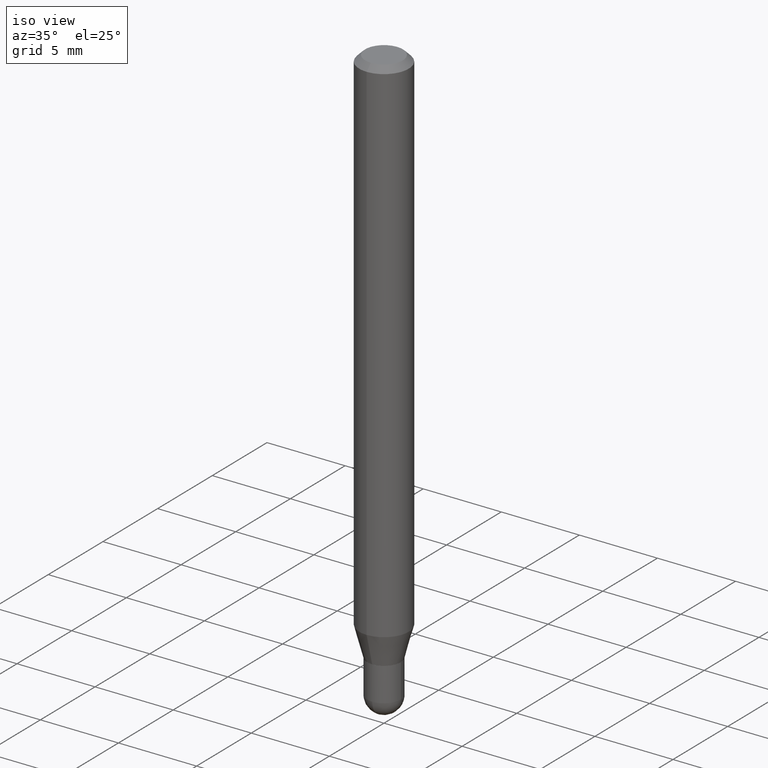
[diagram: clean part render]
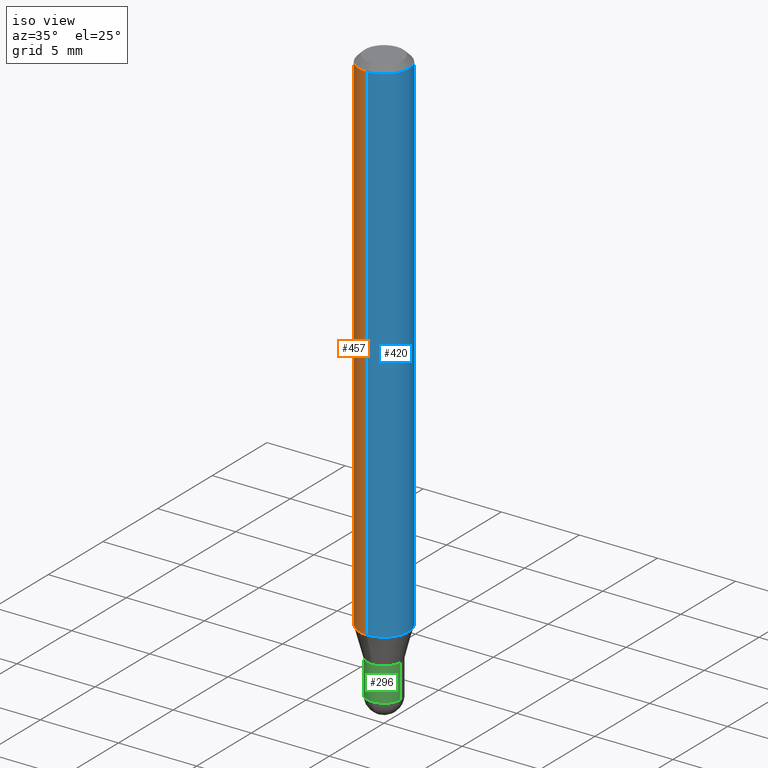
[diagram: same view with three faces highlighted in distinct colors, each labeled with its STEP entity id]
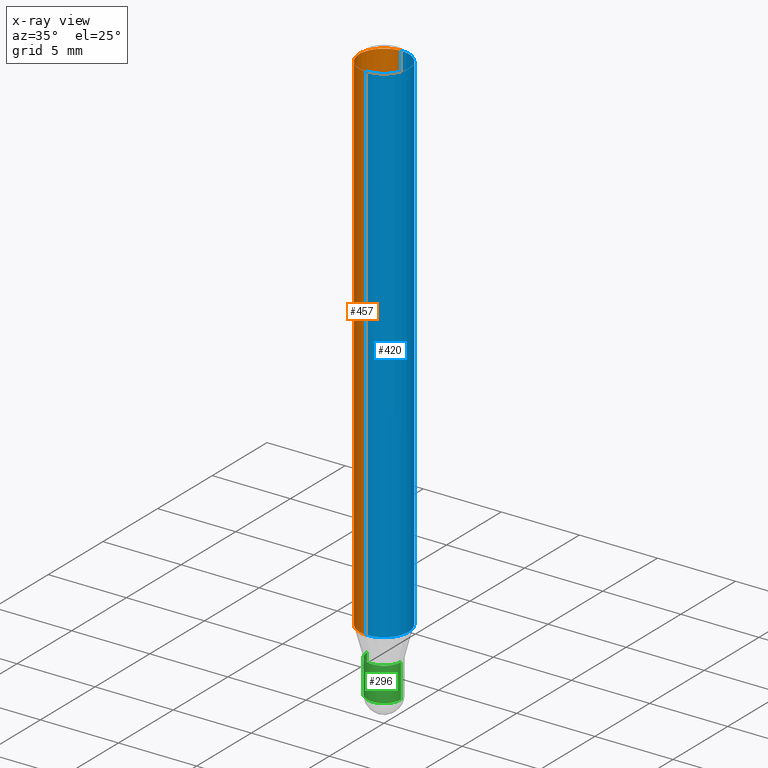
[diagram: x-ray of the same camera — body ghosted, the three highlighted faces saturated]
A machine part, iso view with three faces highlighted in distinct colors.
The next image is the same camera in x-ray (body ghosted, the three faces saturated) — at least one of them is partly hidden behind the body in this view.
Their STEP definitions:

[orange] entity #457 — the highlighted cylindrical surface (edge-blend (fillet) strip) has radius 1.5875 mm, axis along (-0, 0, 1).
#2 = FACE_OUTER_BOUND ( 'NONE', #251, .T. ) ;
#17 = ORIENTED_EDGE ( 'NONE', *, *, #194, .T. ) ;
#23 = VECTOR ( 'NONE', #480, 39.37007874015748143 ) ;
#28 = VECTOR ( 'NONE', #232, 39.37007874015748143 ) ;
#34 = CARTESIAN_POINT ( 'NONE',  ( 3.668125049425643686E-31, -5.237333937621498511E-17, -0.01500000000000006710 ) ) ;
#38 = VERTEX_POINT ( 'NONE', #481 ) ;
#76 = CARTESIAN_POINT ( 'NONE',  ( 4.440892098500625669E-16, 0.06250000000000000000, -2.182222474008948016E-16 ) ) ;
#85 = CARTESIAN_POINT ( 'NONE',  ( 0.000000000000000000, 0.000000000000000000, 0.000000000000000000 ) ) ;
#97 = AXIS2_PLACEMENT_3D ( 'NONE', #85, #132, #282 ) ;
#100 = DIRECTION ( 'NONE',  ( -6.982962677686265922E-15, -1.000000000000000000, 4.370956789862821150E-15 ) ) ;
#126 = ORIENTED_EDGE ( 'NONE', *, *, #479, .T. ) ;
#132 = DIRECTION ( 'NONE',  ( -2.445416699617084767E-29, 3.491555958414317221E-15, 1.000000000000000000 ) ) ;
#177 = CIRCLE ( 'NONE', #423, 0.06250000000000000000 ) ;
#194 = EDGE_CURVE ( 'NONE', #323, #38, #355, .T. ) ;
#200 = LINE ( 'NONE', #76, #28 ) ;
#232 = DIRECTION ( 'NONE',  ( -2.445416699617084487E-29, 3.491555958414317221E-15, 1.000000000000000000 ) ) ;
#237 = CARTESIAN_POINT ( 'NONE',  ( 4.440892098500944664E-16, 0.06249999999999550360, -1.297858983848626080 ) ) ;
#251 = EDGE_LOOP ( 'NONE', ( #261, #17, #126, #505 ) ) ;
#258 = EDGE_CURVE ( 'NONE', #444, #473, #177, .T. ) ;
#261 = ORIENTED_EDGE ( 'NONE', *, *, #303, .F. ) ;
#280 = AXIS2_PLACEMENT_3D ( 'NONE', #453, #450, #100 ) ;
#282 = DIRECTION ( 'NONE',  ( -6.982962677686265922E-15, -1.000000000000000000, 3.491555958414316826E-15 ) ) ;
#303 = EDGE_CURVE ( 'NONE', #323, #444, #200, .T. ) ;
#318 = CARTESIAN_POINT ( 'NONE',  ( -4.364351673553916201E-16, -0.06250000000000000000, 2.182222474008948016E-16 ) ) ;
#323 = VERTEX_POINT ( 'NONE', #237 ) ;
#326 = CARTESIAN_POINT ( 'NONE',  ( 4.440892098500945650E-16, 0.06249999999999995143, -0.01500000000000028394 ) ) ;
#350 = DIRECTION ( 'NONE',  ( -2.445416699617084767E-29, 3.491555958414317221E-15, 1.000000000000000000 ) ) ;
#355 = CIRCLE ( 'NONE', #280, 0.06250000000000000000 ) ;
#360 = LINE ( 'NONE', #318, #23 ) ;
#423 = AXIS2_PLACEMENT_3D ( 'NONE', #34, #350, #427 ) ;
#427 = DIRECTION ( 'NONE',  ( -6.982962677686265922E-15, -1.000000000000000000, 3.483106191921935554E-15 ) ) ;
#439 = CARTESIAN_POINT ( 'NONE',  ( -4.364351673553912750E-16, -0.06250000000000005551, -0.01499999999999984852 ) ) ;
#444 = VERTEX_POINT ( 'NONE', #326 ) ;
#450 = DIRECTION ( 'NONE',  ( -2.445416699617084767E-29, 3.491555958414317221E-15, 1.000000000000000000 ) ) ;
#453 = CARTESIAN_POINT ( 'NONE',  ( 3.173806032851490413E-29, -4.531547268238220910E-15, -1.297858983848625858 ) ) ;
#457 = ADVANCED_FACE ( 'NONE', ( #2 ), #470, .T. ) ;
#470 = CYLINDRICAL_SURFACE ( 'NONE', #97, 0.06250000000000000000 ) ;
#473 = VERTEX_POINT ( 'NONE', #439 ) ;
#479 = EDGE_CURVE ( 'NONE', #38, #473, #360, .T. ) ;
#480 = DIRECTION ( 'NONE',  ( -2.445416699617084487E-29, 3.491555958414317221E-15, 1.000000000000000000 ) ) ;
#481 = CARTESIAN_POINT ( 'NONE',  ( -4.364351673553596712E-16, -0.06250000000000449640, -1.297858983848625636 ) ) ;
#505 = ORIENTED_EDGE ( 'NONE', *, *, #258, .F. ) ;

[blue] entity #420 — the highlighted cylindrical surface (edge-blend (fillet) strip) has radius 1.5875 mm, axis along (-0, 0, 1).
#15 = ORIENTED_EDGE ( 'NONE', *, *, #303, .T. ) ;
#23 = VECTOR ( 'NONE', #480, 39.37007874015748143 ) ;
#28 = VECTOR ( 'NONE', #232, 39.37007874015748143 ) ;
#38 = VERTEX_POINT ( 'NONE', #481 ) ;
#67 = DIRECTION ( 'NONE',  ( -6.982962677686265922E-15, -1.000000000000000000, 3.483106191921935554E-15 ) ) ;
#68 = CIRCLE ( 'NONE', #463, 0.06250000000000000000 ) ;
#76 = CARTESIAN_POINT ( 'NONE',  ( 4.440892098500625669E-16, 0.06250000000000000000, -2.182222474008948016E-16 ) ) ;
#81 = CARTESIAN_POINT ( 'NONE',  ( 0.000000000000000000, 0.000000000000000000, 0.000000000000000000 ) ) ;
#89 = DIRECTION ( 'NONE',  ( -6.982962677686265922E-15, -1.000000000000000000, 3.491555958414316826E-15 ) ) ;
#91 = DIRECTION ( 'NONE',  ( -2.445416699617084767E-29, 3.491555958414317221E-15, 1.000000000000000000 ) ) ;
#96 = DIRECTION ( 'NONE',  ( -6.982962677686265922E-15, -1.000000000000000000, 4.370956789862821150E-15 ) ) ;
#129 = CYLINDRICAL_SURFACE ( 'NONE', #130, 0.06250000000000000000 ) ;
#130 = AXIS2_PLACEMENT_3D ( 'NONE', #81, #91, #89 ) ;
#165 = FACE_OUTER_BOUND ( 'NONE', #298, .T. ) ;
#188 = EDGE_CURVE ( 'NONE', #38, #323, #404, .T. ) ;
#200 = LINE ( 'NONE', #76, #28 ) ;
#232 = DIRECTION ( 'NONE',  ( -2.445416699617084487E-29, 3.491555958414317221E-15, 1.000000000000000000 ) ) ;
#233 = DIRECTION ( 'NONE',  ( -2.445416699617084767E-29, 3.491555958414317221E-15, 1.000000000000000000 ) ) ;
#237 = CARTESIAN_POINT ( 'NONE',  ( 4.440892098500944664E-16, 0.06249999999999550360, -1.297858983848626080 ) ) ;
#269 = DIRECTION ( 'NONE',  ( -2.445416699617084767E-29, 3.491555958414317221E-15, 1.000000000000000000 ) ) ;
#285 = ORIENTED_EDGE ( 'NONE', *, *, #188, .T. ) ;
#288 = ORIENTED_EDGE ( 'NONE', *, *, #479, .F. ) ;
#298 = EDGE_LOOP ( 'NONE', ( #285, #15, #490, #288 ) ) ;
#303 = EDGE_CURVE ( 'NONE', #323, #444, #200, .T. ) ;
#318 = CARTESIAN_POINT ( 'NONE',  ( -4.364351673553916201E-16, -0.06250000000000000000, 2.182222474008948016E-16 ) ) ;
#323 = VERTEX_POINT ( 'NONE', #237 ) ;
#326 = CARTESIAN_POINT ( 'NONE',  ( 4.440892098500945650E-16, 0.06249999999999995143, -0.01500000000000028394 ) ) ;
#328 = EDGE_CURVE ( 'NONE', #473, #444, #68, .T. ) ;
#331 = CARTESIAN_POINT ( 'NONE',  ( 3.173806032851490413E-29, -4.531547268238220910E-15, -1.297858983848625858 ) ) ;
#360 = LINE ( 'NONE', #318, #23 ) ;
#404 = CIRCLE ( 'NONE', #454, 0.06250000000000000000 ) ;
#420 = ADVANCED_FACE ( 'NONE', ( #165 ), #129, .T. ) ;
#439 = CARTESIAN_POINT ( 'NONE',  ( -4.364351673553912750E-16, -0.06250000000000005551, -0.01499999999999984852 ) ) ;
#444 = VERTEX_POINT ( 'NONE', #326 ) ;
#454 = AXIS2_PLACEMENT_3D ( 'NONE', #331, #269, #96 ) ;
#463 = AXIS2_PLACEMENT_3D ( 'NONE', #465, #233, #67 ) ;
#465 = CARTESIAN_POINT ( 'NONE',  ( 3.668125049425643686E-31, -5.237333937621498511E-17, -0.01500000000000006710 ) ) ;
#473 = VERTEX_POINT ( 'NONE', #439 ) ;
#479 = EDGE_CURVE ( 'NONE', #38, #473, #360, .T. ) ;
#480 = DIRECTION ( 'NONE',  ( -2.445416699617084487E-29, 3.491555958414317221E-15, 1.000000000000000000 ) ) ;
#481 = CARTESIAN_POINT ( 'NONE',  ( -4.364351673553596712E-16, -0.06250000000000449640, -1.297858983848625636 ) ) ;
#490 = ORIENTED_EDGE ( 'NONE', *, *, #328, .F. ) ;

[green] entity #296 — the highlighted cylindrical surface (edge-blend (fillet) strip) has radius 1.0795 mm, axis along (-0, 0, 1).
#8 = VERTEX_POINT ( 'NONE', #51 ) ;
#51 = CARTESIAN_POINT ( 'NONE',  ( 0.04250000000000000999, -5.237222008264719754E-15, -1.457500000000000240 ) ) ;
#53 = VERTEX_POINT ( 'NONE', #178 ) ;
#55 = AXIS2_PLACEMENT_3D ( 'NONE', #321, #213, #245 ) ;
#74 = ORIENTED_EDGE ( 'NONE', *, *, #475, .T. ) ;
#86 = ORIENTED_EDGE ( 'NONE', *, *, #225, .T. ) ;
#93 = EDGE_CURVE ( 'NONE', #8, #164, #227, .T. ) ;
#111 = AXIS2_PLACEMENT_3D ( 'NONE', #376, #337, #305 ) ;
#117 = CARTESIAN_POINT ( 'NONE',  ( 0.000000000000000000, 0.000000000000000000, 0.000000000000000000 ) ) ;
#128 = AXIS2_PLACEMENT_3D ( 'NONE', #117, #431, #506 ) ;
#148 = VECTOR ( 'NONE', #343, 39.37007874015748143 ) ;
#154 = ORIENTED_EDGE ( 'NONE', *, *, #380, .F. ) ;
#155 = VECTOR ( 'NONE', #512, 39.37007874015748143 ) ;
#156 = LINE ( 'NONE', #351, #155 ) ;
#157 = FACE_OUTER_BOUND ( 'NONE', #474, .T. ) ;
#164 = VERTEX_POINT ( 'NONE', #406 ) ;
#166 = ORIENTED_EDGE ( 'NONE', *, *, #93, .T. ) ;
#178 = CARTESIAN_POINT ( 'NONE',  ( -0.04250000000000000999, -4.638465431765009073E-15, -1.457500000000000240 ) ) ;
#181 = VERTEX_POINT ( 'NONE', #411 ) ;
#206 = CIRCLE ( 'NONE', #319, 0.04250000000000000999 ) ;
#210 = DIRECTION ( 'NONE',  ( -2.445468806185136597E-29, 3.491481338843145583E-15, 1.000000000000000000 ) ) ;
#213 = DIRECTION ( 'NONE',  ( -2.445468806185136597E-29, 3.491481338843145583E-15, 1.000000000000000000 ) ) ;
#225 = EDGE_CURVE ( 'NONE', #181, #8, #379, .T. ) ;
#227 = LINE ( 'NONE', #308, #148 ) ;
#239 = DIRECTION ( 'NONE',  ( 1.000000000000000000, -6.982962677686273810E-15, 0.000000000000000000 ) ) ;
#241 = ORIENTED_EDGE ( 'NONE', *, *, #353, .F. ) ;
#245 = DIRECTION ( 'NONE',  ( 1.000000000000000000, -6.982962677686276177E-15, 0.000000000000000000 ) ) ;
#270 = CYLINDRICAL_SURFACE ( 'NONE', #128, 0.04250000000000000999 ) ;
#296 = ADVANCED_FACE ( 'NONE', ( #157 ), #270, .T. ) ;
#305 = DIRECTION ( 'NONE',  ( 1.000000000000000000, -6.982962677686273810E-15, 0.000000000000000000 ) ) ;
#308 = CARTESIAN_POINT ( 'NONE',  ( 0.04250000000000000999, -2.967759138016664042E-16, 2.072375129713273202E-30 ) ) ;
#319 = AXIS2_PLACEMENT_3D ( 'NONE', #476, #210, #239 ) ;
#321 = CARTESIAN_POINT ( 'NONE',  ( 3.356405936489099934E-29, -4.792058137562217412E-15, -1.372500000000000275 ) ) ;
#337 = DIRECTION ( 'NONE',  ( -2.445468806185136597E-29, 3.491481338843145583E-15, 1.000000000000000000 ) ) ;
#343 = DIRECTION ( 'NONE',  ( -2.445468806185136877E-29, 3.491481338843145188E-15, 1.000000000000000000 ) ) ;
#351 = CARTESIAN_POINT ( 'NONE',  ( -0.04250000000000000999, 3.019806626980426500E-16, -2.090547413358335560E-30 ) ) ;
#352 = CARTESIAN_POINT ( 'NONE',  ( -0.04249999999999999611, -4.638465431765008284E-15, -1.372500000000000275 ) ) ;
#353 = EDGE_CURVE ( 'NONE', #53, #403, #156, .T. ) ;
#376 = CARTESIAN_POINT ( 'NONE',  ( 3.564270785014837509E-29, -5.088834051363884851E-15, -1.457500000000000240 ) ) ;
#379 = CIRCLE ( 'NONE', #111, 0.04250000000000000999 ) ;
#380 = EDGE_CURVE ( 'NONE', #403, #164, #432, .T. ) ;
#403 = VERTEX_POINT ( 'NONE', #352 ) ;
#406 = CARTESIAN_POINT ( 'NONE',  ( 0.04249999999999999611, -5.088834051363884062E-15, -1.372500000000000275 ) ) ;
#411 = CARTESIAN_POINT ( 'NONE',  ( -2.967759138016305604E-16, -0.04250000000000507538, -1.457500000000000018 ) ) ;
#431 = DIRECTION ( 'NONE',  ( -2.445468806185136597E-29, 3.491481338843145583E-15, 1.000000000000000000 ) ) ;
#432 = CIRCLE ( 'NONE', #55, 0.04249999999999999611 ) ;
#474 = EDGE_LOOP ( 'NONE', ( #241, #74, #86, #166, #154 ) ) ;
#475 = EDGE_CURVE ( 'NONE', #53, #181, #206, .T. ) ;
#476 = CARTESIAN_POINT ( 'NONE',  ( 3.564270785014837509E-29, -5.088834051363884851E-15, -1.457500000000000240 ) ) ;
#506 = DIRECTION ( 'NONE',  ( 1.000000000000000000, -6.982962677686266711E-15, 4.876176775795935793E-29 ) ) ;
#512 = DIRECTION ( 'NONE',  ( -2.445468806185136877E-29, 3.491481338843145188E-15, 1.000000000000000000 ) ) ;